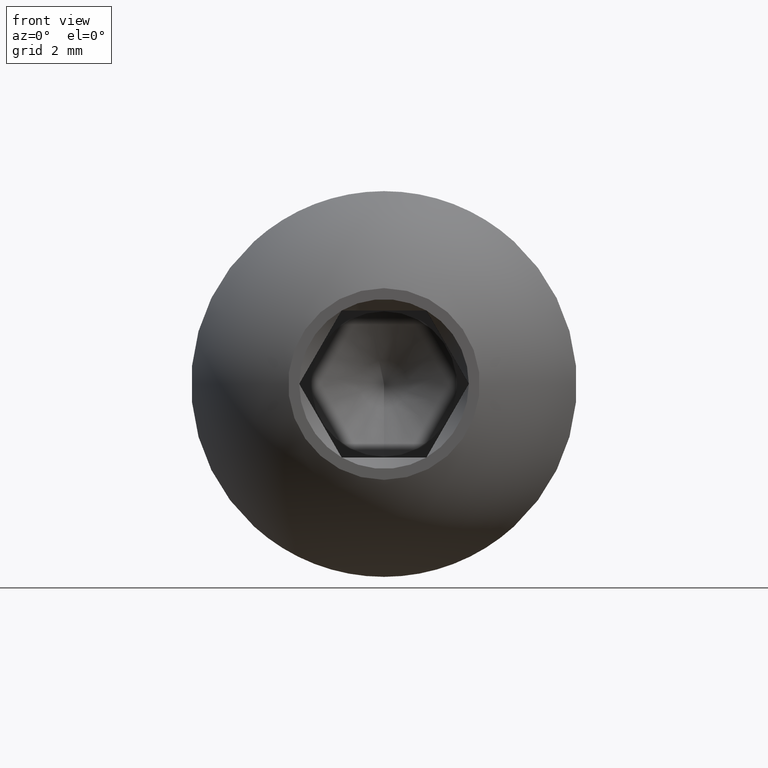
[diagram: clean part render]
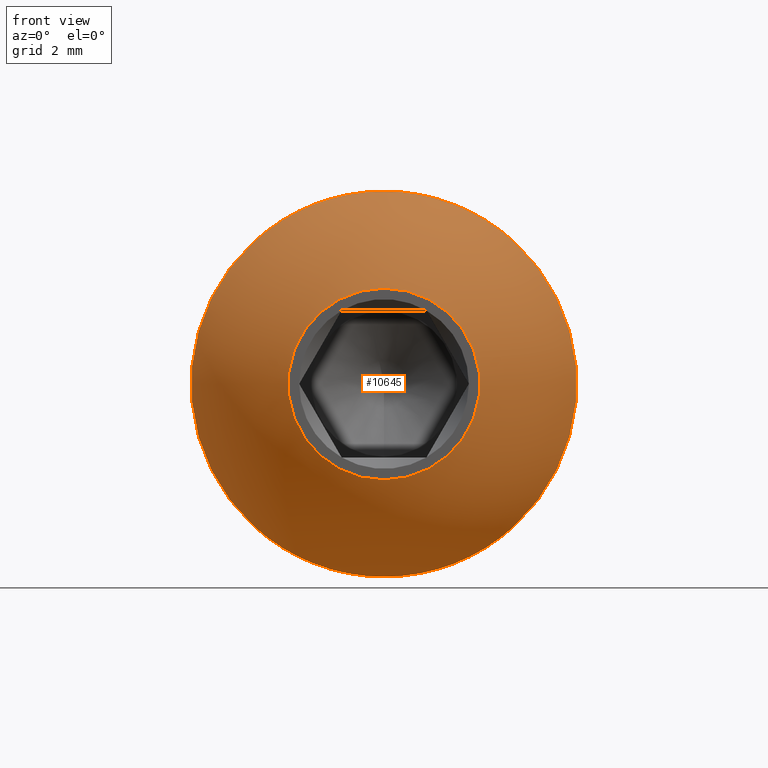
[diagram: same view with one face highlighted and labeled with its STEP entity id]
A machine part, front view. The second image highlights one B-rep face of the part: STEP entity #10645.
In plain terms, the highlighted spherical surface has radius 5.6036 mm.
Its self-contained STEP definition (entity closure, byte-faithful):
#141 = CARTESIAN_POINT ( 'NONE',  ( 0.0000000000000000000, -8.673617379884035500E-016, -2.609401076758501000 ) ) ;
#585 = VERTEX_POINT ( 'NONE', #8409 ) ;
#914 = DIRECTION ( 'NONE',  ( -0.0000000000000000000, -1.000000000000000000, -0.0000000000000000000 ) ) ;
#2839 = VERTEX_POINT ( 'NONE', #141 ) ;
#4514 = DIRECTION ( 'NONE',  ( 0.0000000000000000000, 0.0000000000000000000, -1.000000000000000000 ) ) ;
#4586 = FACE_OUTER_BOUND ( 'NONE', #9645, .T. ) ;
#4865 = AXIS2_PLACEMENT_3D ( 'NONE', #8120, #8226, #7075 ) ;
#6495 = CARTESIAN_POINT ( 'NONE',  ( 0.0000000000000000000, -8.673617379884035500E-016, 0.0000000000000000000 ) ) ;
#6599 = DIRECTION ( 'NONE',  ( 0.0000000000000000000, 0.0000000000000000000, -1.000000000000000000 ) ) ;
#6688 = EDGE_CURVE ( 'NONE', #2839, #2839, #10218, .T. ) ;
#7075 = DIRECTION ( 'NONE',  ( 1.000000000000000000, 0.0000000000000000000, 0.0000000000000000000 ) ) ;
#7141 = AXIS2_PLACEMENT_3D ( 'NONE', #6495, #8842, #6599 ) ;
#7977 = AXIS2_PLACEMENT_3D ( 'NONE', #10479, #914, #4514 ) ;
#8120 = CARTESIAN_POINT ( 'NONE',  ( 0.0000000000000000000, 4.958921003435260200, 0.0000000000000000000 ) ) ;
#8226 = DIRECTION ( 'NONE',  ( 0.0000000000000000000, 0.0000000000000000000, 1.000000000000000000 ) ) ;
#8409 = CARTESIAN_POINT ( 'NONE',  ( 0.0000000000000000000, 3.000000000000000000, -5.249999999999999100 ) ) ;
#8431 = ORIENTED_EDGE ( 'NONE', *, *, #11754, .T. ) ;
#8432 = ORIENTED_EDGE ( 'NONE', *, *, #6688, .F. ) ;
#8842 = DIRECTION ( 'NONE',  ( -0.0000000000000000000, -1.000000000000000000, -0.0000000000000000000 ) ) ;
#9645 = EDGE_LOOP ( 'NONE', ( #8431 ) ) ;
#9736 = EDGE_LOOP ( 'NONE', ( #8432 ) ) ;
#10218 = CIRCLE ( 'NONE', #7141, 2.609401076758501000 ) ;
#10391 = CIRCLE ( 'NONE', #7977, 5.249999999999999100 ) ;
#10479 = CARTESIAN_POINT ( 'NONE',  ( 0.0000000000000000000, 3.000000000000000000, 0.0000000000000000000 ) ) ;
#10645 = ADVANCED_FACE ( 'NONE', ( #4586, #11920 ), #13249, .T. ) ;
#11754 = EDGE_CURVE ( 'NONE', #585, #585, #10391, .T. ) ;
#11920 = FACE_OUTER_BOUND ( 'NONE', #9736, .T. ) ;
#13249 = SPHERICAL_SURFACE ( 'NONE', #4865, 5.603558824327607500 ) ;